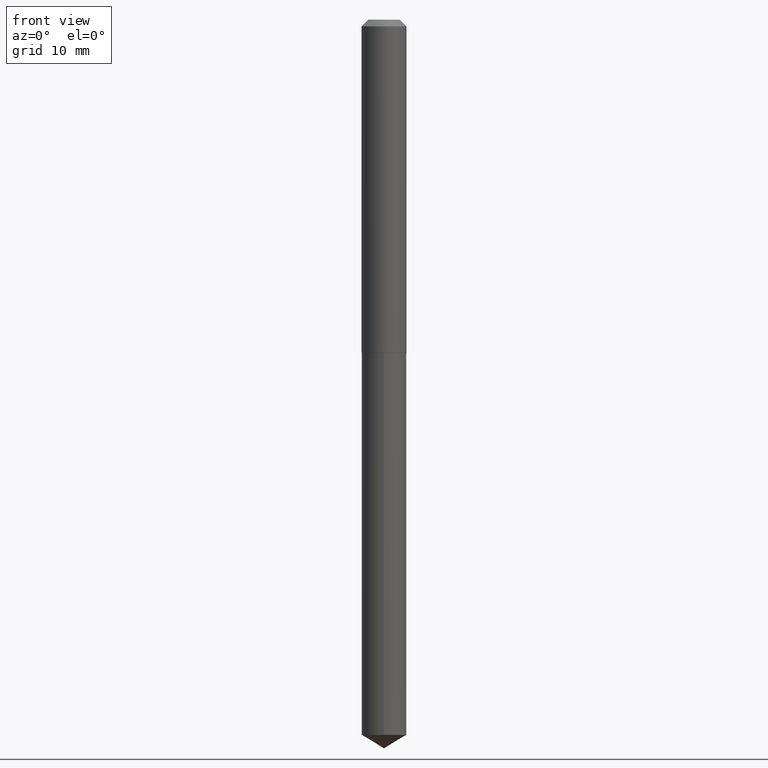
[diagram: clean part render]
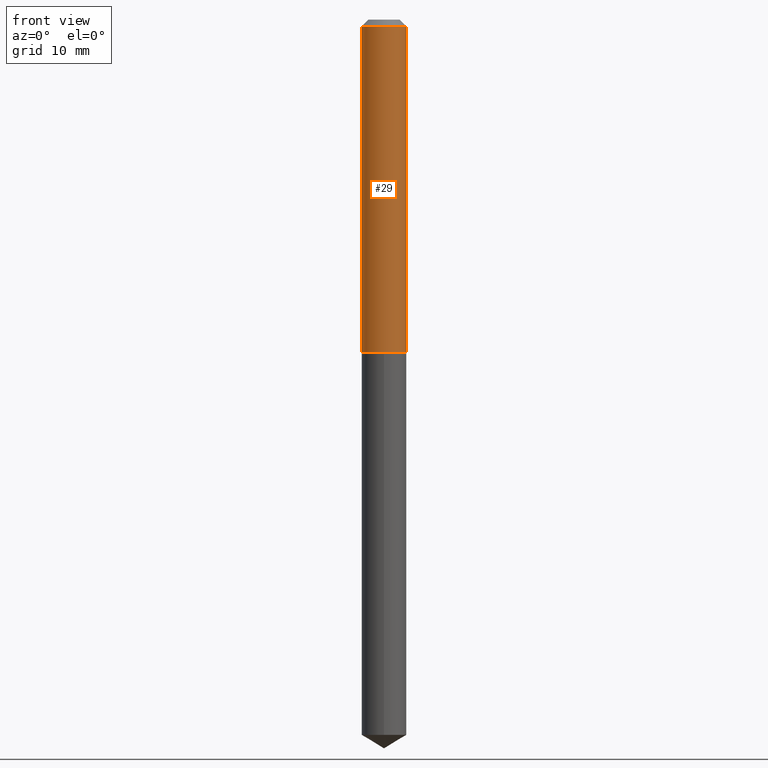
[diagram: same view with one face highlighted and labeled with its STEP entity id]
A machine part, front view. The second image highlights one B-rep face of the part: STEP entity #29.
In plain terms, the highlighted cylindrical surface (edge-blend (fillet) strip) has radius 2.6505 mm, axis along (-0, 0, 1).
Its self-contained STEP definition (entity closure, byte-faithful):
#7 = CARTESIAN_POINT ( 'NONE',  ( 3.782651149407169365E-29, -5.400623334922577222E-15, -1.546799999999999953 ) ) ;
#29 = ADVANCED_FACE ( 'NONE', ( #311 ), #300, .T. ) ;
#32 = ORIENTED_EDGE ( 'NONE', *, *, #47, .F. ) ;
#47 = EDGE_CURVE ( 'NONE', #241, #323, #180, .T. ) ;
#76 = CARTESIAN_POINT ( 'NONE',  ( 0.1043500000000000816, -7.286721554165625095E-16, 5.088290465543062912E-30 ) ) ;
#77 = AXIS2_PLACEMENT_3D ( 'NONE', #208, #147, #91 ) ;
#82 = VERTEX_POINT ( 'NONE', #349 ) ;
#83 = CARTESIAN_POINT ( 'NONE',  ( 0.1043499999999999844, -8.377809472554109199E-16, -0.03125000000000020817 ) ) ;
#88 = EDGE_CURVE ( 'NONE', #323, #386, #159, .T. ) ;
#91 = DIRECTION ( 'NONE',  ( 1.000000000000000000, -6.982962677686266711E-15, 4.876176775795935793E-29 ) ) ;
#98 = LINE ( 'NONE', #76, #286 ) ;
#100 = DIRECTION ( 'NONE',  ( -2.445468806185136877E-29, 3.491481338843145188E-15, 1.000000000000000000 ) ) ;
#104 = DIRECTION ( 'NONE',  ( -2.445468806185136597E-29, 3.491481338843145583E-15, 1.000000000000000000 ) ) ;
#110 = ORIENTED_EDGE ( 'NONE', *, *, #88, .F. ) ;
#113 = AXIS2_PLACEMENT_3D ( 'NONE', #7, #104, #347 ) ;
#147 = DIRECTION ( 'NONE',  ( -2.445468806185136597E-29, 3.491481338843145583E-15, 1.000000000000000000 ) ) ;
#159 = CIRCLE ( 'NONE', #388, 0.1043499999999999844 ) ;
#162 = EDGE_CURVE ( 'NONE', #82, #386, #98, .T. ) ;
#169 = EDGE_CURVE ( 'NONE', #241, #82, #240, .T. ) ;
#180 = LINE ( 'NONE', #304, #318 ) ;
#185 = ORIENTED_EDGE ( 'NONE', *, *, #169, .T. ) ;
#208 = CARTESIAN_POINT ( 'NONE',  ( 0.000000000000000000, 0.000000000000000000, 0.000000000000000000 ) ) ;
#219 = CARTESIAN_POINT ( 'NONE',  ( 7.642090019328602662E-31, -1.091087918388490267E-16, -0.03125000000000020817 ) ) ;
#231 = EDGE_LOOP ( 'NONE', ( #32, #185, #367, #110 ) ) ;
#240 = CIRCLE ( 'NONE', #113, 0.1043500000000001787 ) ;
#241 = VERTEX_POINT ( 'NONE', #371 ) ;
#286 = VECTOR ( 'NONE', #100, 39.37007874015748143 ) ;
#288 = DIRECTION ( 'NONE',  ( 1.000000000000000000, -6.982962677686266711E-15, 0.000000000000000000 ) ) ;
#300 = CYLINDRICAL_SURFACE ( 'NONE', #77, 0.1043500000000000816 ) ;
#304 = CARTESIAN_POINT ( 'NONE',  ( -0.1043500000000000816, 7.414513447656651236E-16, -5.132908766680998310E-30 ) ) ;
#311 = FACE_OUTER_BOUND ( 'NONE', #231, .T. ) ;
#318 = VECTOR ( 'NONE', #390, 39.37007874015748143 ) ;
#323 = VERTEX_POINT ( 'NONE', #380 ) ;
#347 = DIRECTION ( 'NONE',  ( 1.000000000000000000, -6.982962677686269077E-15, 0.000000000000000000 ) ) ;
#349 = CARTESIAN_POINT ( 'NONE',  ( 0.1043500000000001787, -6.129295490339141210E-15, -1.546799999999999953 ) ) ;
#367 = ORIENTED_EDGE ( 'NONE', *, *, #162, .T. ) ;
#371 = CARTESIAN_POINT ( 'NONE',  ( -0.1043500000000001787, -4.659171990156911506E-15, -1.546799999999999953 ) ) ;
#375 = DIRECTION ( 'NONE',  ( -2.445468806185136597E-29, 3.491481338843145583E-15, 1.000000000000000000 ) ) ;
#380 = CARTESIAN_POINT ( 'NONE',  ( -0.1043499999999999844, -2.013414718615047446E-15, -0.03125000000000020817 ) ) ;
#386 = VERTEX_POINT ( 'NONE', #83 ) ;
#388 = AXIS2_PLACEMENT_3D ( 'NONE', #219, #375, #288 ) ;
#390 = DIRECTION ( 'NONE',  ( -2.445468806185136877E-29, 3.491481338843145188E-15, 1.000000000000000000 ) ) ;